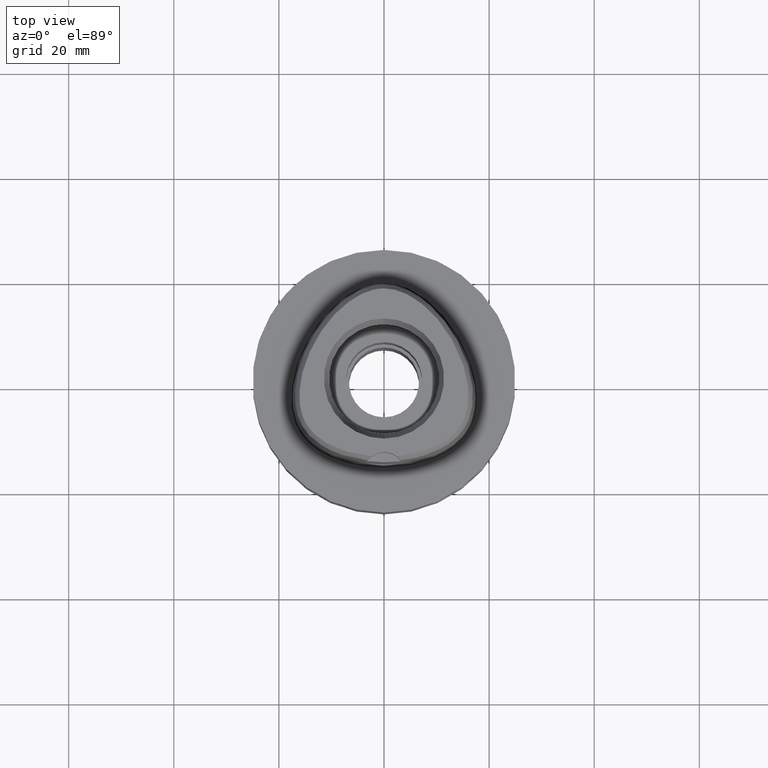
[diagram: clean part render]
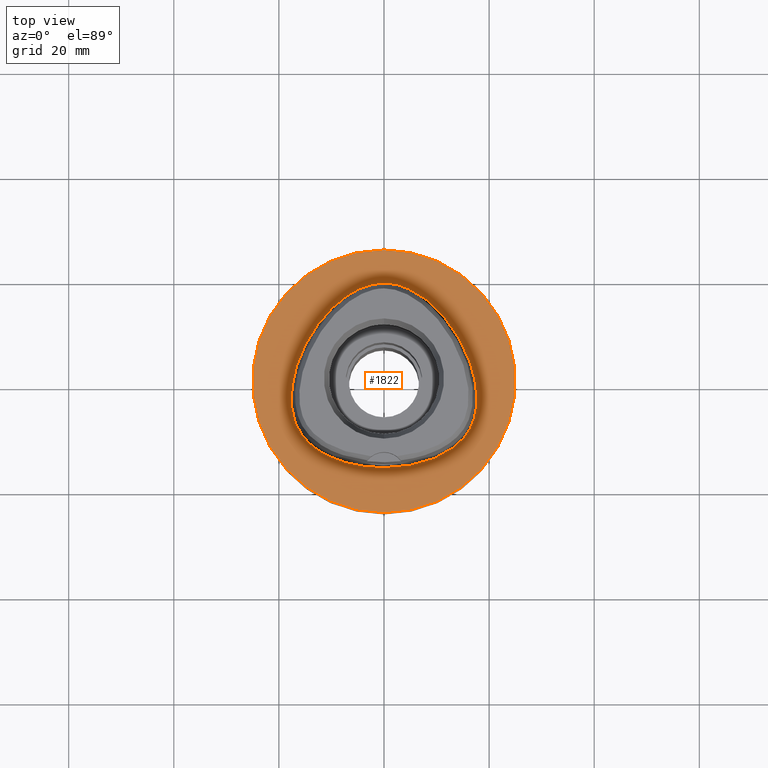
[diagram: same view with one face highlighted and labeled with its STEP entity id]
A machine part, top view. The second image highlights one B-rep face of the part: STEP entity #1822.
In plain terms, the highlighted planar face has unit normal (0, 0, -1).
Its self-contained STEP definition (entity closure, byte-faithful):
#177 = CIRCLE ( 'NONE', #1341, 25.00000000000000000 ) ;
#206 = CARTESIAN_POINT ( 'NONE',  ( -2.281366820062999925E-11, -16.45500000000000185, 1.870355722151999859E-13 ) ) ;
#229 = DIRECTION ( 'NONE',  ( 0.0000000000000000000, 1.000000000000000000, 0.0000000000000000000 ) ) ;
#249 = AXIS2_PLACEMENT_3D ( 'NONE', #3748, #1895, #4409 ) ;
#262 = CARTESIAN_POINT ( 'NONE',  ( -17.56373942975215385, -5.455996093810133729, -1.690801510845045541E-08 ) ) ;
#276 = CARTESIAN_POINT ( 'NONE',  ( -2.281366820062999925E-11, -16.45500000000000185, 1.870355722151999859E-13 ) ) ;
#298 = ORIENTED_EDGE ( 'NONE', *, *, #3674, .F. ) ;
#411 = EDGE_LOOP ( 'NONE', ( #3357, #298 ) ) ;
#572 = CARTESIAN_POINT ( 'NONE',  ( 8.526051962487000024E-11, 18.69499999997999851, 1.858143268880999949E-13 ) ) ;
#579 = DIRECTION ( 'NONE',  ( 0.0000000000000000000, -1.000000000000000000, 0.0000000000000000000 ) ) ;
#769 = CARTESIAN_POINT ( 'NONE',  ( 4.728927212299886662, 17.73480469916560054, -5.104437950337152585E-07 ) ) ;
#797 = EDGE_CURVE ( 'NONE', #1240, #3511, #4477, .T. ) ;
#1034 = CARTESIAN_POINT ( 'NONE',  ( 8.526051962487000024E-11, 18.69499999997999851, 1.858143268880999949E-13 ) ) ;
#1043 = CARTESIAN_POINT ( 'NONE',  ( -2.281366820062999925E-11, -16.45500000000000185, 1.870355722151999859E-13 ) ) ;
#1070 = CARTESIAN_POINT ( 'NONE',  ( -17.71143735603917690, -3.269218749997704787, -1.690801510845045541E-08 ) ) ;
#1111 = CARTESIAN_POINT ( 'NONE',  ( 17.56373944202030657, -5.455996095565049053, -5.104437950337152585E-07 ) ) ;
#1155 = VERTEX_POINT ( 'NONE', #3551 ) ;
#1240 = VERTEX_POINT ( 'NONE', #572 ) ;
#1272 = CARTESIAN_POINT ( 'NONE',  ( -0.6801907858906857118, 18.69500000043022325, -1.690801510845045872E-08 ) ) ;
#1285 = CARTESIAN_POINT ( 'NONE',  ( 5.051093169834740770, -16.15562501262835227, -5.104437950337152585E-07 ) ) ;
#1341 = AXIS2_PLACEMENT_3D ( 'NONE', #2404, #2446, #229 ) ;
#1355 = CARTESIAN_POINT ( 'NONE',  ( 14.78833381328783325, -11.28232911036973363, -5.104437950337152585E-07 ) ) ;
#1409 = CARTESIAN_POINT ( 'NONE',  ( -17.16495051821277684, -7.165908203245463959, -1.690801510845045541E-08 ) ) ;
#1425 = CARTESIAN_POINT ( 'NONE',  ( 0.6801907867857971413, 18.69500001275854828, -5.104437950337152585E-07 ) ) ;
#1711 = CARTESIAN_POINT ( 'NONE',  ( 0.0000000000000000000, 25.00000000000000000, 0.0000000000000000000 ) ) ;
#1722 = CARTESIAN_POINT ( 'NONE',  ( -4.728927206997867394, 17.73480468788939035, -1.690801510845045541E-08 ) ) ;
#1802 = CARTESIAN_POINT ( 'NONE',  ( -11.68694516604229605, -13.70394531287258566, -1.690801510845045541E-08 ) ) ;
#1819 = CARTESIAN_POINT ( 'NONE',  ( 17.49754713570586517, -0.2285937477594398026, -5.104437950337152585E-07 ) ) ;
#1822 = ADVANCED_FACE ( 'NONE', ( #2588, #2225 ), #3783, .F. ) ;
#1895 = DIRECTION ( 'NONE',  ( 0.0000000000000000000, 0.0000000000000000000, -1.000000000000000000 ) ) ;
#2205 = CARTESIAN_POINT ( 'NONE',  ( 7.967839672173288257, 15.83070313512072502, -5.104437950337152585E-07 ) ) ;
#2225 = FACE_BOUND ( 'NONE', #3852, .T. ) ;
#2231 = CARTESIAN_POINT ( 'NONE',  ( 2.040572360294860221, 18.55015626257044659, -5.104437950337152585E-07 ) ) ;
#2404 = CARTESIAN_POINT ( 'NONE',  ( 0.0000000000000000000, 1.273020347714000000E-14, 0.0000000000000000000 ) ) ;
#2425 = CARTESIAN_POINT ( 'NONE',  ( 13.50690094271748620, -12.48264649445611241, -5.104437950337152585E-07 ) ) ;
#2446 = DIRECTION ( 'NONE',  ( 0.0000000000000000000, 0.0000000000000000000, -1.000000000000000000 ) ) ;
#2499 = CARTESIAN_POINT ( 'NONE',  ( -15.64884224290362447, -10.21298828149724613, -1.690801510845045541E-08 ) ) ;
#2523 = CARTESIAN_POINT ( 'NONE',  ( -17.49754712349655250, -0.2285937499258093863, -1.690801510845045541E-08 ) ) ;
#2541 = CARTESIAN_POINT ( 'NONE',  ( 17.16495053008644334, -7.165908206769227462, -5.104437950337152585E-07 ) ) ;
#2552 = CARTESIAN_POINT ( 'NONE',  ( -8.946741556329989464, -15.03902343790625729, -1.690801510845045541E-08 ) ) ;
#2577 = ORIENTED_EDGE ( 'NONE', *, *, #3525, .F. ) ;
#2578 = CARTESIAN_POINT ( 'NONE',  ( -1.683697722553804121, -16.45500000041959154, -1.690801510845045541E-08 ) ) ;
#2588 = FACE_OUTER_BOUND ( 'NONE', #411, .T. ) ;
#2758 = CARTESIAN_POINT ( 'NONE',  ( -2.040572357754064203, 18.55015625041527016, -1.690801510845045541E-08 ) ) ;
#2764 = ORIENTED_EDGE ( 'NONE', *, *, #797, .F. ) ;
#2771 = CARTESIAN_POINT ( 'NONE',  ( 11.68694517217151763, -13.70394532362162288, -5.104437950337152585E-07 ) ) ;
#3055 = B_SPLINE_CURVE_WITH_KNOTS ( 'NONE', 3,
 ( #206, #3256, #1285, #4289, #2771, #2425, #1355, #3576, #3278, #4434, #2541, #1111, #4380, #1819, #3361, #4828, #4091, #2205, #769, #2231, #1425, #1034 ),
 .UNSPECIFIED., .F., .F.,
 ( 4, 1, 1, 1, 1, 1, 1, 1, 1, 1, 1, 1, 1, 1, 1, 1, 1, 1, 1, 4 ),
 ( 0.0000000000000000000, 0.08333333333359001227, 0.1666666666668000230, 0.2083333333334000115, 0.2500000000000000000, 0.2916666666666999919, 0.3124999999998999689, 0.3333333333332000326, 0.3541666666666000163, 0.3749999999997999933, 0.4166666666665000407, 0.4583333333330000259, 0.4999999999996999622, 0.5833333333328000192, 0.6666666666660999718, 0.7499999999993000044, 0.8333333333325000369, 0.9166666666657999896, 0.9583333333322999747, 1.000000000000000000 ),
 .UNSPECIFIED. ) ;
#3135 = CIRCLE ( 'NONE', #249, 25.00000000000000000 ) ;
#3256 = CARTESIAN_POINT ( 'NONE',  ( 1.683697723273428259, -16.45500001275569701, -5.104437950337152585E-07 ) ) ;
#3278 = CARTESIAN_POINT ( 'NONE',  ( 16.20602473071626548, -9.356552740767522636, -5.104437950337152585E-07 ) ) ;
#3313 = CARTESIAN_POINT ( 'NONE',  ( -13.50690093506182166, -12.48264648470788885, -1.690801510845045541E-08 ) ) ;
#3357 = ORIENTED_EDGE ( 'NONE', *, *, #3466, .F. ) ;
#3361 = CARTESIAN_POINT ( 'NONE',  ( 16.51672825988086402, 3.703437504356545062, -5.104437950337152585E-07 ) ) ;
#3466 = EDGE_CURVE ( 'NONE', #4116, #1155, #177, .T. ) ;
#3511 = VERTEX_POINT ( 'NONE', #276 ) ;
#3525 = EDGE_CURVE ( 'NONE', #3511, #1240, #3055, .T. ) ;
#3551 = CARTESIAN_POINT ( 'NONE',  ( 0.0000000000000000000, -25.00000000000000000, 0.0000000000000000000 ) ) ;
#3558 = CARTESIAN_POINT ( 'NONE',  ( 0.0000000000000000000, 1.224646799146999965E-14, 0.0000000000000000000 ) ) ;
#3576 = CARTESIAN_POINT ( 'NONE',  ( 15.64884225290569653, -10.21298828876872022, -5.104437950337152585E-07 ) ) ;
#3646 = AXIS2_PLACEMENT_3D ( 'NONE', #3558, #4249, #579 ) ;
#3656 = CARTESIAN_POINT ( 'NONE',  ( -16.20602472000866001, -9.356552734586527365, -1.690801510845045541E-08 ) ) ;
#3674 = EDGE_CURVE ( 'NONE', #1155, #4116, #3135, .T. ) ;
#3748 = CARTESIAN_POINT ( 'NONE',  ( 0.0000000000000000000, 1.273020347714000000E-14, 0.0000000000000000000 ) ) ;
#3783 = PLANE ( 'NONE',  #3646 ) ;
#3852 = EDGE_LOOP ( 'NONE', ( #2764, #2577 ) ) ;
#3977 = CARTESIAN_POINT ( 'NONE',  ( -7.967839664488607809, 15.83070312532958823, -1.690801510845045541E-08 ) ) ;
#4025 = CARTESIAN_POINT ( 'NONE',  ( -5.051093167647729310, -16.15562500041149008, -1.690801510845045541E-08 ) ) ;
#4053 = CARTESIAN_POINT ( 'NONE',  ( -14.78833380430417144, -11.28232910184870974, -1.690801510845045541E-08 ) ) ;
#4074 = CARTESIAN_POINT ( 'NONE',  ( -14.38008119726537970, 8.302343750211678142, -1.690801510845045541E-08 ) ) ;
#4091 = CARTESIAN_POINT ( 'NONE',  ( 11.46563509003561343, 12.45218750827844190, -5.104437950337152585E-07 ) ) ;
#4116 = VERTEX_POINT ( 'NONE', #1711 ) ;
#4249 = DIRECTION ( 'NONE',  ( 0.0000000000000000000, 0.0000000000000000000, -1.000000000000000000 ) ) ;
#4289 = CARTESIAN_POINT ( 'NONE',  ( 8.946741560561356721, -15.03902344956007830, -5.104437950337152585E-07 ) ) ;
#4338 = CARTESIAN_POINT ( 'NONE',  ( -16.51672824819905827, 3.703437500144240779, -1.690801510845045541E-08 ) ) ;
#4366 = CARTESIAN_POINT ( 'NONE',  ( -16.66912842177992360, -8.445800781422402537, -1.690801510845045541E-08 ) ) ;
#4380 = CARTESIAN_POINT ( 'NONE',  ( 17.71143736841353089, -3.269218749916900535, -5.104437950337152585E-07 ) ) ;
#4409 = DIRECTION ( 'NONE',  ( 0.0000000000000000000, -1.000000000000000000, 0.0000000000000000000 ) ) ;
#4434 = CARTESIAN_POINT ( 'NONE',  ( 16.66912843307551739, -8.445800786444761954, -5.104437950337152585E-07 ) ) ;
#4477 = B_SPLINE_CURVE_WITH_KNOTS ( 'NONE', 3,
 ( #4616, #1272, #2758, #1722, #3977, #4734, #4074, #4338, #2523, #1070, #262, #1409, #4366, #3656, #2499, #4053, #3313, #1802, #2552, #4025, #2578, #1043 ),
 .UNSPECIFIED., .F., .F.,
 ( 4, 1, 1, 1, 1, 1, 1, 1, 1, 1, 1, 1, 1, 1, 1, 1, 1, 1, 1, 4 ),
 ( 0.0000000000000000000, 0.04166666666833999944, 0.08333333333493000983, 0.1666666666682000142, 0.2500000000013000157, 0.3333333333344999927, 0.4166666666677000253, 0.5000000000008999468, 0.5416666666675000741, 0.5833333333340999793, 0.6250000000006999956, 0.6458333333340000593, 0.6666666666673000119, 0.6875000000005999645, 0.7083333333339000282, 0.7500000000005000445, 0.7916666666671000607, 0.8333333333336999660, 0.9166666666668999985, 1.000000000000000000 ),
 .UNSPECIFIED. ) ;
#4616 = CARTESIAN_POINT ( 'NONE',  ( 8.526051962487000024E-11, 18.69499999997999851, 1.858143268880999949E-13 ) ) ;
#4734 = CARTESIAN_POINT ( 'NONE',  ( -11.46563508056043368, 12.45218750027530952, -1.690801510845045541E-08 ) ) ;
#4828 = CARTESIAN_POINT ( 'NONE',  ( 14.38008120800550671, 8.302343756411996623, -5.104437950337152585E-07 ) ) ;